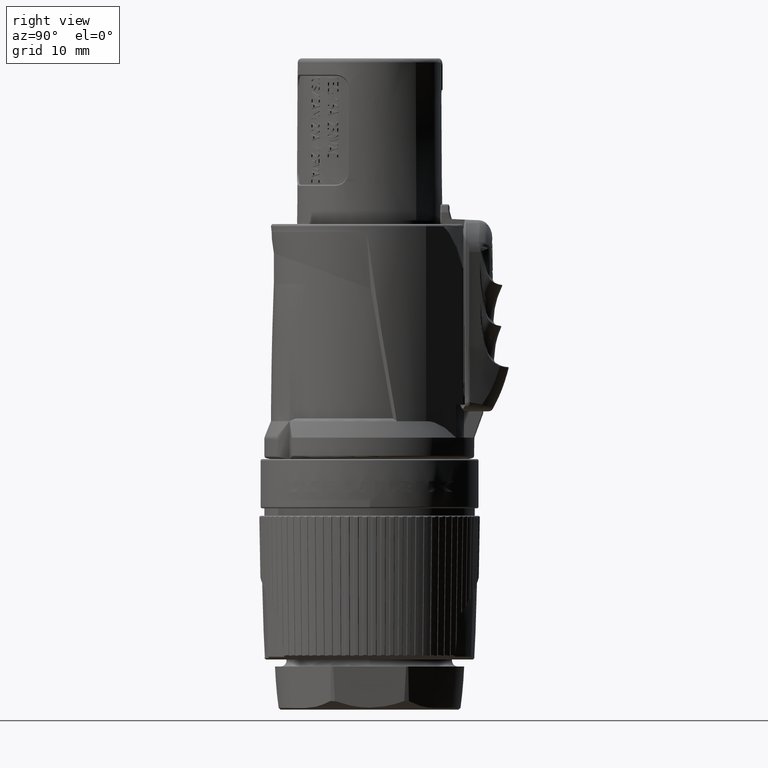
[diagram: clean part render]
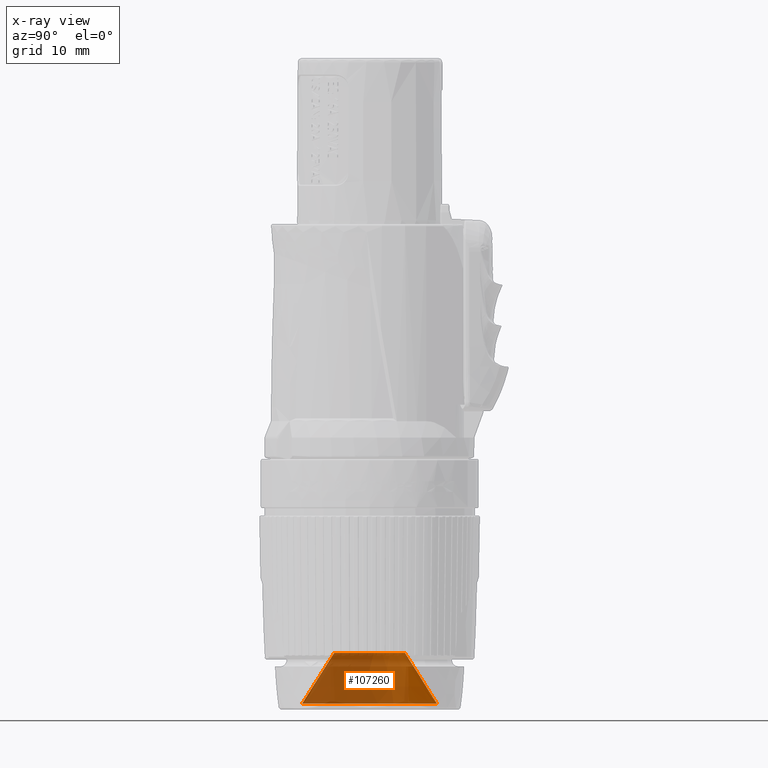
[diagram: x-ray — body ghosted, one internal face saturated and labeled with its STEP entity id]
A machine part, right view, then the same camera in x-ray: the body is ghosted and one INTERNAL B-rep face — a face not visible from any outside direction — is saturated and labeled: STEP entity #107260.
In plain terms, the highlighted conical surface has half-angle 32.27 deg.
Its self-contained STEP definition (entity closure, byte-faithful):
#107149=DIRECTION('',(0.E0,5.339096981012E-1,-8.455415035783E-1));
#107150=VECTOR('',#107149,7.273445447649E0);
#107151=CARTESIAN_POINT('',(0.E0,4.3E0,-8.9E0));
#107152=LINE('',#107151,#107150);
#107153=CARTESIAN_POINT('',(0.E0,0.E0,-8.9E0));
#107154=DIRECTION('',(0.E0,0.E0,1.E0));
#107155=DIRECTION('',(0.E0,1.E0,0.E0));
#107156=AXIS2_PLACEMENT_3D('',#107153,#107154,#107155);
#107158=DIRECTION('',(0.E0,-5.339096981012E-1,-8.455415035783E-1));
#107159=VECTOR('',#107158,7.273445447649E0);
#107160=CARTESIAN_POINT('',(0.E0,-4.3E0,-8.9E0));
#107161=LINE('',#107160,#107159);
#107167=CARTESIAN_POINT('',(0.E0,0.E0,-1.505E1));
#107168=DIRECTION('',(0.E0,0.E0,-1.E0));
#107169=DIRECTION('',(0.E0,-1.E0,0.E0));
#107170=AXIS2_PLACEMENT_3D('',#107167,#107168,#107169);
#107225=CARTESIAN_POINT('',(0.E0,4.3E0,-8.9E0));
#107226=CARTESIAN_POINT('',(0.E0,-4.3E0,-8.9E0));
#107227=VERTEX_POINT('',#107225);
#107228=VERTEX_POINT('',#107226);
#107237=CARTESIAN_POINT('',(0.E0,8.183363063110E0,-1.505E1));
#107238=CARTESIAN_POINT('',(0.E0,-8.183363063110E0,-1.505E1));
#107239=VERTEX_POINT('',#107237);
#107240=VERTEX_POINT('',#107238);
#107245=CARTESIAN_POINT('',(0.E0,0.E0,-1.1975E1));
#107246=DIRECTION('',(0.E0,0.E0,-1.E0));
#107247=DIRECTION('',(0.E0,-1.E0,0.E0));
#107248=AXIS2_PLACEMENT_3D('',#107245,#107246,#107247);
#107249=CONICAL_SURFACE('',#107248,6.241681531555E0,3.227E1);
#107251=ORIENTED_EDGE('',*,*,#107250,.T.);
#107253=ORIENTED_EDGE('',*,*,#107252,.F.);
#107255=ORIENTED_EDGE('',*,*,#107254,.T.);
#107257=ORIENTED_EDGE('',*,*,#107256,.T.);
#107258=EDGE_LOOP('',(#107251,#107253,#107255,#107257));
#107259=FACE_OUTER_BOUND('',#107258,.F.);
#107260=ADVANCED_FACE('',(#107259),#107249,.T.);
#107157=CIRCLE('',#107156,4.3E0);
#107171=CIRCLE('',#107170,8.183363063110E0);
#107250=EDGE_CURVE('',#107240,#107239,#107171,.T.);
#107252=EDGE_CURVE('',#107227,#107239,#107152,.T.);
#107254=EDGE_CURVE('',#107227,#107228,#107157,.T.);
#107256=EDGE_CURVE('',#107228,#107240,#107161,.T.);